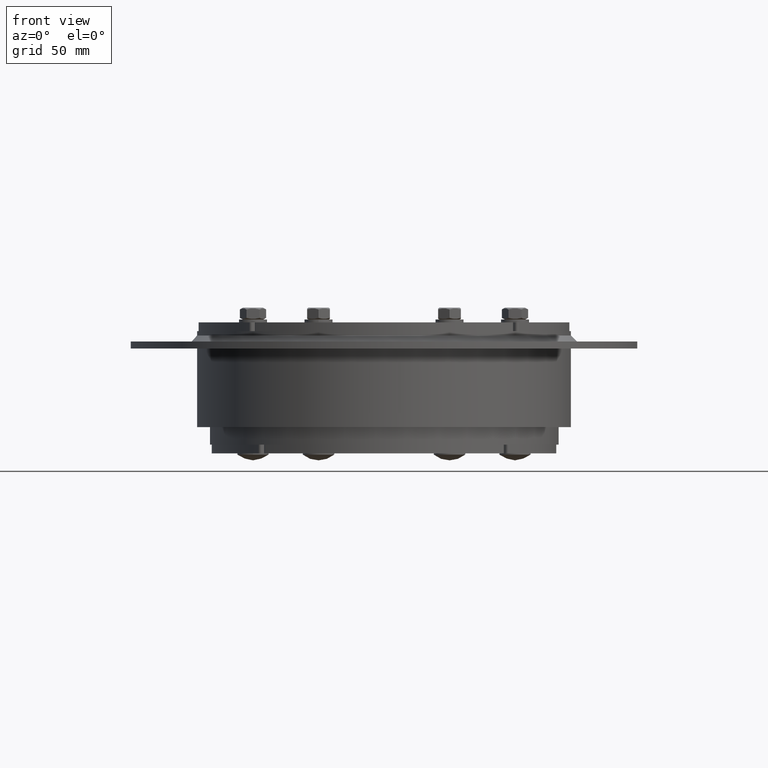
[diagram: clean part render]
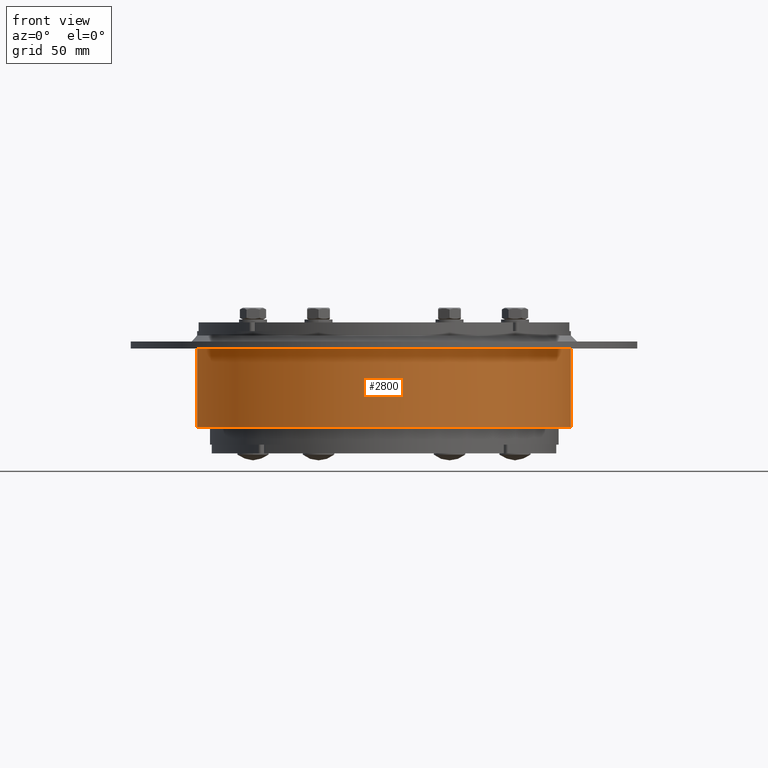
[diagram: same view with one face highlighted and labeled with its STEP entity id]
A machine part, front view. The second image highlights one B-rep face of the part: STEP entity #2800.
In plain terms, the highlighted cylindrical surface (bore or boss wall) has radius 107 mm, axis along (0, 0, -1).
Its self-contained STEP definition (entity closure, byte-faithful):
#2729=CARTESIAN_POINT('',(107.00000000000001,1.310372E-014,-10.0));
#2730=VERTEX_POINT('',#2729);
#2731=CARTESIAN_POINT('',(0.0,0.0,-10.000000000000002));
#2732=DIRECTION('',(0.0,0.0,-1.0));
#2733=DIRECTION('',(-1.0,0.0,0.0));
#2734=AXIS2_PLACEMENT_3D('',#2731,#2732,#2733);
#2735=CIRCLE('',#2734,107.00000000000001);
#2736=EDGE_CURVE('',#2730,#2730,#2735,.T.);
#2781=CARTESIAN_POINT('',(0.0,0.0,0.0));
#2782=DIRECTION('',(0.0,0.0,-1.0));
#2783=DIRECTION('',(-1.0,0.0,0.0));
#2784=AXIS2_PLACEMENT_3D('',#2781,#2782,#2783);
#2785=CYLINDRICAL_SURFACE('',#2784,107.00000000000001);
#2786=ORIENTED_EDGE('',*,*,#2736,.T.);
#2787=EDGE_LOOP('',(#2786));
#2788=FACE_OUTER_BOUND('',#2787,.T.);
#2789=CARTESIAN_POINT('',(107.00000000000001,1.310372E-014,-55.0));
#2790=VERTEX_POINT('',#2789);
#2791=CARTESIAN_POINT('',(0.0,0.0,-55.0));
#2792=DIRECTION('',(0.0,0.0,-1.0));
#2793=DIRECTION('',(-1.0,0.0,0.0));
#2794=AXIS2_PLACEMENT_3D('',#2791,#2792,#2793);
#2795=CIRCLE('',#2794,107.00000000000001);
#2796=EDGE_CURVE('',#2790,#2790,#2795,.T.);
#2797=ORIENTED_EDGE('',*,*,#2796,.F.);
#2798=EDGE_LOOP('',(#2797));
#2799=FACE_BOUND('',#2798,.T.);
#2800=ADVANCED_FACE('',(#2788,#2799),#2785,.T.);